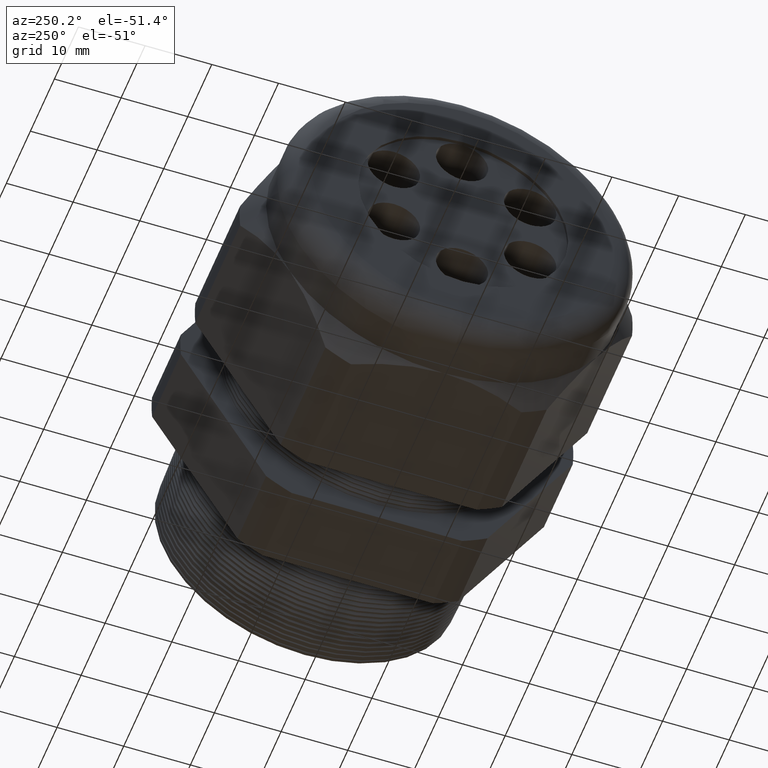
[diagram: clean part render]
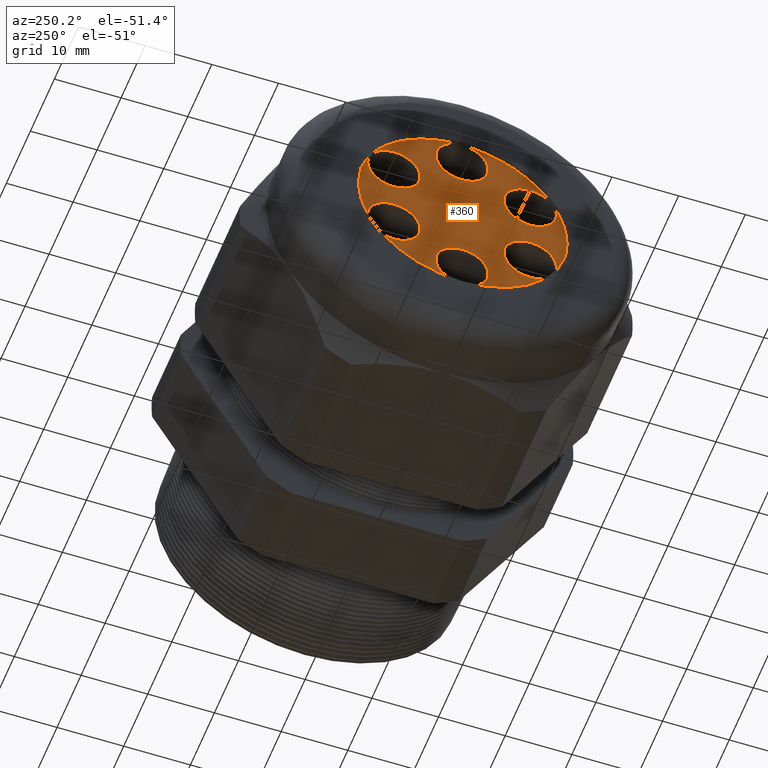
[diagram: same view with one face highlighted and labeled with its STEP entity id]
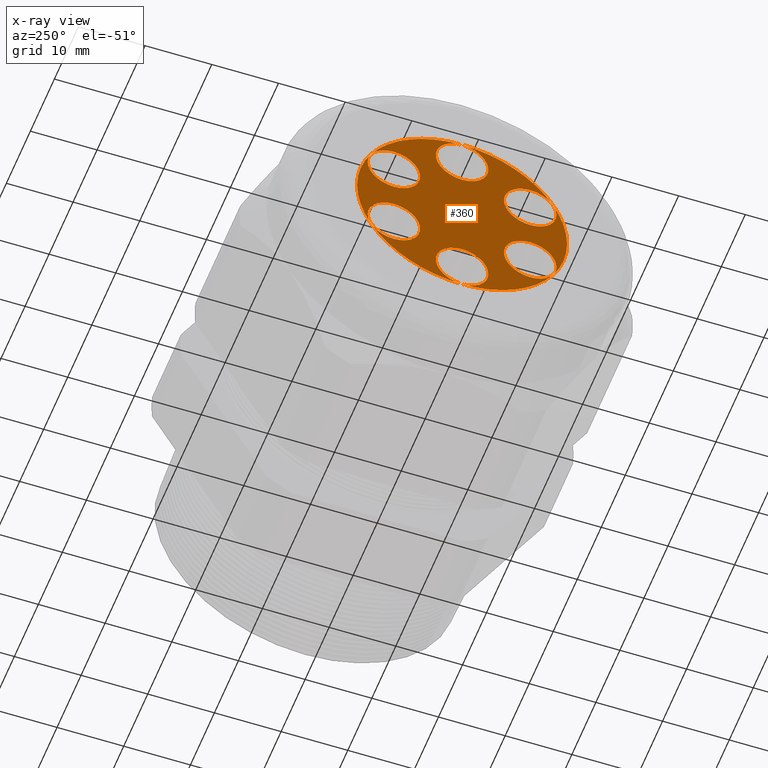
[diagram: x-ray of the same camera — body ghosted, the highlighted face saturated]
A machine part, auxiliary view. The second image highlights one B-rep face of the part: STEP entity #360.
The next image is the same camera in x-ray: the body ghosted, the highlighted face saturated — about 0% of this face is hidden behind the body in this view.
In plain terms, the highlighted planar face has unit normal (-1, 0, 0).
Its self-contained STEP definition (entity closure, byte-faithful):
#207 = VERTEX_POINT ( 'NONE', #924 ) ;
#308 = EDGE_LOOP ( 'NONE', ( #309, #311 ) ) ;
#309 = ORIENTED_EDGE ( 'NONE', *, *, #310, .F. ) ;
#310 = EDGE_CURVE ( 'NONE', #5118, #5116, #1068, .T. ) ;
#311 = ORIENTED_EDGE ( 'NONE', *, *, #5128, .F. ) ;
#323 = EDGE_CURVE ( 'NONE', #429, #428, #1120, .T. ) ;
#337 = EDGE_LOOP ( 'NONE', ( #387, #440 ) ) ;
#339 = EDGE_LOOP ( 'NONE', ( #437, #444 ) ) ;
#360 = ADVANCED_FACE ( 'NONE', ( #1192, #1191, #1190, #1189, #1188, #1187, #1186 ), #1185, .T. ) ;
#361 = EDGE_LOOP ( 'NONE', ( #362, #364 ) ) ;
#362 = ORIENTED_EDGE ( 'NONE', *, *, #363, .F. ) ;
#363 = EDGE_CURVE ( 'NONE', #5096, #417, #1180, .T. ) ;
#364 = ORIENTED_EDGE ( 'NONE', *, *, #5100, .F. ) ;
#365 = EDGE_LOOP ( 'NONE', ( #366, #368 ) ) ;
#366 = ORIENTED_EDGE ( 'NONE', *, *, #367, .F. ) ;
#367 = EDGE_CURVE ( 'NONE', #459, #207, #1174, .T. ) ;
#368 = ORIENTED_EDGE ( 'NONE', *, *, #458, .F. ) ;
#369 = EDGE_LOOP ( 'NONE', ( #370, #372 ) ) ;
#370 = ORIENTED_EDGE ( 'NONE', *, *, #371, .F. ) ;
#371 = EDGE_CURVE ( 'NONE', #474, #470, #1169, .T. ) ;
#372 = ORIENTED_EDGE ( 'NONE', *, *, #472, .F. ) ;
#384 = ORIENTED_EDGE ( 'NONE', *, *, #323, .T. ) ;
#387 = ORIENTED_EDGE ( 'NONE', *, *, #388, .F. ) ;
#388 = EDGE_CURVE ( 'NONE', #421, #493, #1225, .T. ) ;
#400 = ORIENTED_EDGE ( 'NONE', *, *, #427, .T. ) ;
#407 = EDGE_CURVE ( 'NONE', #482, #479, #1199, .T. ) ;
#417 = VERTEX_POINT ( 'NONE', #1252 ) ;
#420 = EDGE_CURVE ( 'NONE', #493, #421, #1251, .T. ) ;
#421 = VERTEX_POINT ( 'NONE', #1245 ) ;
#427 = EDGE_CURVE ( 'NONE', #428, #429, #1298, .T. ) ;
#428 = VERTEX_POINT ( 'NONE', #1294 ) ;
#429 = VERTEX_POINT ( 'NONE', #1293 ) ;
#437 = ORIENTED_EDGE ( 'NONE', *, *, #407, .F. ) ;
#440 = ORIENTED_EDGE ( 'NONE', *, *, #420, .F. ) ;
#444 = ORIENTED_EDGE ( 'NONE', *, *, #481, .F. ) ;
#445 = EDGE_LOOP ( 'NONE', ( #384, #400 ) ) ;
#458 = EDGE_CURVE ( 'NONE', #207, #459, #1325, .T. ) ;
#459 = VERTEX_POINT ( 'NONE', #1320 ) ;
#470 = VERTEX_POINT ( 'NONE', #1361 ) ;
#472 = EDGE_CURVE ( 'NONE', #470, #474, #1360, .T. ) ;
#474 = VERTEX_POINT ( 'NONE', #1355 ) ;
#479 = VERTEX_POINT ( 'NONE', #1350 ) ;
#481 = EDGE_CURVE ( 'NONE', #479, #482, #1349, .T. ) ;
#482 = VERTEX_POINT ( 'NONE', #1344 ) ;
#493 = VERTEX_POINT ( 'NONE', #1386 ) ;
#924 = CARTESIAN_POINT ( 'NONE',  ( -2.179999999999999700, 0.4021648770094197700, 0.07718999999999624800 ) ) ;
#1065 = DIRECTION ( 'NONE',  ( 0.0000000000000000000, 0.8660254037844363800, -0.5000000000000040000 ) ) ;
#1066 = DIRECTION ( 'NONE',  ( -1.000000000000000000, 0.0000000000000000000, 0.0000000000000000000 ) ) ;
#1067 = AXIS2_PLACEMENT_3D ( 'NONE', #1073, #1066, #1065 ) ;
#1068 = CIRCLE ( 'NONE', #1067, 0.1550000000000000300 ) ;
#1073 = CARTESIAN_POINT ( 'NONE',  ( -2.179999999999999700, -0.4021648770094165500, 0.2321900000000018900 ) ) ;
#1112 = DIRECTION ( 'NONE',  ( 0.0000000000000000000, 0.0000000000000000000, 1.000000000000000000 ) ) ;
#1113 = DIRECTION ( 'NONE',  ( -1.000000000000000000, 0.0000000000000000000, 0.0000000000000000000 ) ) ;
#1114 = CARTESIAN_POINT ( 'NONE',  ( -2.179999999999999700, 0.0000000000000000000, 0.0000000000000000000 ) ) ;
#1115 = AXIS2_PLACEMENT_3D ( 'NONE', #1114, #1113, #1112 ) ;
#1120 = CIRCLE ( 'NONE', #1115, 0.6200000000000000000 ) ;
#1165 = DIRECTION ( 'NONE',  ( 0.0000000000000000000, -6.982966722218764900E-015, -1.000000000000000000 ) ) ;
#1166 = DIRECTION ( 'NONE',  ( -1.000000000000000000, 0.0000000000000000000, 0.0000000000000000000 ) ) ;
#1167 = CARTESIAN_POINT ( 'NONE',  ( -2.179999999999999700, 3.242750086463949600E-015, 0.4643799999999999600 ) ) ;
#1168 = AXIS2_PLACEMENT_3D ( 'NONE', #1167, #1166, #1165 ) ;
#1169 = CIRCLE ( 'NONE', #1168, 0.1550000000000000000 ) ;
#1170 = DIRECTION ( 'NONE',  ( 0.0000000000000000000, -0.8660254037844431500, -0.4999999999999919500 ) ) ;
#1171 = DIRECTION ( 'NONE',  ( -1.000000000000000000, 0.0000000000000000000, 0.0000000000000000000 ) ) ;
#1172 = CARTESIAN_POINT ( 'NONE',  ( -2.179999999999999700, 0.4021648770094197700, 0.2321899999999962600 ) ) ;
#1173 = AXIS2_PLACEMENT_3D ( 'NONE', #1172, #1171, #1170 ) ;
#1174 = CIRCLE ( 'NONE', #1173, 0.1550000000000000300 ) ;
#1176 = DIRECTION ( 'NONE',  ( 0.0000000000000000000, -0.8660254037844328200, 0.5000000000000102100 ) ) ;
#1177 = DIRECTION ( 'NONE',  ( -1.000000000000000000, 0.0000000000000000000, 0.0000000000000000000 ) ) ;
#1178 = CARTESIAN_POINT ( 'NONE',  ( -2.179999999999999700, 0.4021648770094149400, -0.2321900000000046700 ) ) ;
#1179 = AXIS2_PLACEMENT_3D ( 'NONE', #1178, #1177, #1176 ) ;
#1180 = CIRCLE ( 'NONE', #1179, 0.1550000000000000300 ) ;
#1181 = DIRECTION ( 'NONE',  ( 0.0000000000000000000, 0.0000000000000000000, 1.000000000000000000 ) ) ;
#1182 = DIRECTION ( 'NONE',  ( -1.000000000000000000, 0.0000000000000000000, 0.0000000000000000000 ) ) ;
#1183 = CARTESIAN_POINT ( 'NONE',  ( -2.179999999999999700, 0.0000000000000000000, 0.0000000000000000000 ) ) ;
#1184 = AXIS2_PLACEMENT_3D ( 'NONE', #1183, #1182, #1181 ) ;
#1185 = PLANE ( 'NONE',  #1184 ) ;
#1186 = FACE_OUTER_BOUND ( 'NONE', #445, .T. ) ;
#1187 = FACE_BOUND ( 'NONE', #337, .T. ) ;
#1188 = FACE_BOUND ( 'NONE', #339, .T. ) ;
#1189 = FACE_BOUND ( 'NONE', #308, .T. ) ;
#1190 = FACE_BOUND ( 'NONE', #369, .T. ) ;
#1191 = FACE_BOUND ( 'NONE', #365, .T. ) ;
#1192 = FACE_BOUND ( 'NONE', #361, .T. ) ;
#1197 = DIRECTION ( 'NONE',  ( -1.000000000000000000, 0.0000000000000000000, 0.0000000000000000000 ) ) ;
#1198 = AXIS2_PLACEMENT_3D ( 'NONE', #1205, #1197, #1265 ) ;
#1199 = CIRCLE ( 'NONE', #1198, 0.1550000000000000300 ) ;
#1205 = CARTESIAN_POINT ( 'NONE',  ( -2.179999999999999700, -0.4021648770094181100, -0.2321899999999990600 ) ) ;
#1222 = DIRECTION ( 'NONE',  ( 0.0000000000000000000, 0.0000000000000000000, 1.000000000000000000 ) ) ;
#1223 = DIRECTION ( 'NONE',  ( -1.000000000000000000, 0.0000000000000000000, 0.0000000000000000000 ) ) ;
#1224 = AXIS2_PLACEMENT_3D ( 'NONE', #1232, #1223, #1222 ) ;
#1225 = CIRCLE ( 'NONE', #1224, 0.1550000000000000000 ) ;
#1232 = CARTESIAN_POINT ( 'NONE',  ( -2.179999999999999700, 0.0000000000000000000, -0.4643799999999999600 ) ) ;
#1239 = CARTESIAN_POINT ( 'NONE',  ( -2.179999999999999700, 0.0000000000000000000, 0.0000000000000000000 ) ) ;
#1245 = CARTESIAN_POINT ( 'NONE',  ( -2.179999999999999700, 0.0000000000000000000, -0.3093799999999999900 ) ) ;
#1246 = DIRECTION ( 'NONE',  ( 0.0000000000000000000, 0.0000000000000000000, 1.000000000000000000 ) ) ;
#1248 = DIRECTION ( 'NONE',  ( -1.000000000000000000, 0.0000000000000000000, 0.0000000000000000000 ) ) ;
#1249 = CARTESIAN_POINT ( 'NONE',  ( -2.179999999999999700, 0.0000000000000000000, -0.4643799999999999600 ) ) ;
#1250 = AXIS2_PLACEMENT_3D ( 'NONE', #1249, #1248, #1246 ) ;
#1251 = CIRCLE ( 'NONE', #1250, 0.1550000000000000000 ) ;
#1252 = CARTESIAN_POINT ( 'NONE',  ( -2.179999999999999700, 0.4021648770094149400, -0.3871900000000047000 ) ) ;
#1265 = DIRECTION ( 'NONE',  ( 0.0000000000000000000, 0.8660254037844399300, 0.4999999999999978400 ) ) ;
#1293 = CARTESIAN_POINT ( 'NONE',  ( -2.179999999999999700, 0.0000000000000000000, 0.6200000000000000000 ) ) ;
#1294 = CARTESIAN_POINT ( 'NONE',  ( -2.179999999999999700, 7.592810154713589100E-017, -0.6200000000000000000 ) ) ;
#1295 = DIRECTION ( 'NONE',  ( 0.0000000000000000000, 0.0000000000000000000, 1.000000000000000000 ) ) ;
#1296 = DIRECTION ( 'NONE',  ( -1.000000000000000000, 0.0000000000000000000, 0.0000000000000000000 ) ) ;
#1297 = AXIS2_PLACEMENT_3D ( 'NONE', #1239, #1296, #1295 ) ;
#1298 = CIRCLE ( 'NONE', #1297, 0.6200000000000000000 ) ;
#1320 = CARTESIAN_POINT ( 'NONE',  ( -2.179999999999999700, 0.4021648770094197700, 0.3871899999999963100 ) ) ;
#1321 = DIRECTION ( 'NONE',  ( 0.0000000000000000000, -0.8660254037844431500, -0.4999999999999919500 ) ) ;
#1322 = DIRECTION ( 'NONE',  ( -1.000000000000000000, 0.0000000000000000000, 0.0000000000000000000 ) ) ;
#1323 = CARTESIAN_POINT ( 'NONE',  ( -2.179999999999999700, 0.4021648770094197700, 0.2321899999999962600 ) ) ;
#1324 = AXIS2_PLACEMENT_3D ( 'NONE', #1323, #1322, #1321 ) ;
#1325 = CIRCLE ( 'NONE', #1324, 0.1550000000000000300 ) ;
#1344 = CARTESIAN_POINT ( 'NONE',  ( -2.179999999999999700, -0.4021648770094181100, -0.07718999999999905100 ) ) ;
#1345 = DIRECTION ( 'NONE',  ( 0.0000000000000000000, 0.8660254037844399300, 0.4999999999999978400 ) ) ;
#1346 = DIRECTION ( 'NONE',  ( -1.000000000000000000, 0.0000000000000000000, 0.0000000000000000000 ) ) ;
#1347 = CARTESIAN_POINT ( 'NONE',  ( -2.179999999999999700, -0.4021648770094181100, -0.2321899999999990600 ) ) ;
#1348 = AXIS2_PLACEMENT_3D ( 'NONE', #1347, #1346, #1345 ) ;
#1349 = CIRCLE ( 'NONE', #1348, 0.1550000000000000300 ) ;
#1350 = CARTESIAN_POINT ( 'NONE',  ( -2.179999999999999700, -0.4021648770094181100, -0.3871899999999990900 ) ) ;
#1355 = CARTESIAN_POINT ( 'NONE',  ( -2.179999999999999700, 3.242750086463949600E-015, 0.6193799999999999300 ) ) ;
#1356 = DIRECTION ( 'NONE',  ( 0.0000000000000000000, -6.982966722218764900E-015, -1.000000000000000000 ) ) ;
#1357 = DIRECTION ( 'NONE',  ( -1.000000000000000000, 0.0000000000000000000, 0.0000000000000000000 ) ) ;
#1358 = CARTESIAN_POINT ( 'NONE',  ( -2.179999999999999700, 3.242750086463949600E-015, 0.4643799999999999600 ) ) ;
#1359 = AXIS2_PLACEMENT_3D ( 'NONE', #1358, #1357, #1356 ) ;
#1360 = CIRCLE ( 'NONE', #1359, 0.1550000000000000000 ) ;
#1361 = CARTESIAN_POINT ( 'NONE',  ( -2.179999999999999700, 3.261732111850733400E-015, 0.3093799999999999900 ) ) ;
#1386 = CARTESIAN_POINT ( 'NONE',  ( -2.179999999999999700, 1.898202538678398200E-017, -0.6193799999999999300 ) ) ;
#3021 = CARTESIAN_POINT ( 'NONE',  ( -2.179999999999999700, 0.4021648770094149400, -0.07719000000000464400 ) ) ;
#3077 = DIRECTION ( 'NONE',  ( 0.0000000000000000000, -0.8660254037844328200, 0.5000000000000102100 ) ) ;
#3078 = DIRECTION ( 'NONE',  ( -1.000000000000000000, 0.0000000000000000000, 0.0000000000000000000 ) ) ;
#3079 = CARTESIAN_POINT ( 'NONE',  ( -2.179999999999999700, 0.4021648770094149400, -0.2321900000000046700 ) ) ;
#3080 = AXIS2_PLACEMENT_3D ( 'NONE', #3079, #3078, #3077 ) ;
#3081 = CIRCLE ( 'NONE', #3080, 0.1550000000000000300 ) ;
#3083 = DIRECTION ( 'NONE',  ( 0.0000000000000000000, 0.8660254037844363800, -0.5000000000000040000 ) ) ;
#3084 = DIRECTION ( 'NONE',  ( -1.000000000000000000, 0.0000000000000000000, 0.0000000000000000000 ) ) ;
#3085 = CARTESIAN_POINT ( 'NONE',  ( -2.179999999999999700, -0.4021648770094165500, 0.2321900000000018900 ) ) ;
#3086 = AXIS2_PLACEMENT_3D ( 'NONE', #3085, #3084, #3083 ) ;
#3087 = CIRCLE ( 'NONE', #3086, 0.1550000000000000300 ) ;
#3105 = CARTESIAN_POINT ( 'NONE',  ( -2.179999999999999700, -0.4021648770094165500, 0.3871900000000018700 ) ) ;
#3107 = CARTESIAN_POINT ( 'NONE',  ( -2.179999999999999700, -0.4021648770094165500, 0.07719000000000188200 ) ) ;
#5096 = VERTEX_POINT ( 'NONE', #3021 ) ;
#5100 = EDGE_CURVE ( 'NONE', #417, #5096, #3081, .T. ) ;
#5116 = VERTEX_POINT ( 'NONE', #3107 ) ;
#5118 = VERTEX_POINT ( 'NONE', #3105 ) ;
#5128 = EDGE_CURVE ( 'NONE', #5116, #5118, #3087, .T. ) ;